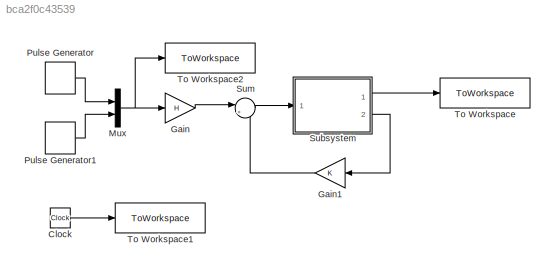
MODEL slx_bca2f0c43539
KIND model
CONFIG AbsTol = auto
CONFIG EnableMultiTasking = on
CONFIG FixedStep = 0.001
CONFIG MaxStep = auto
CONFIG MinStep = auto
CONFIG RelTol = 1e-3
CONFIG SampleTimeConstraint = Unconstrained
CONFIG Solver = ode4
CONFIG SolverName = ode4
CONFIG StartTime = 0.0
CONFIG StopTime = 10
BLOCK [Clock] Clock
BLOCK [Gain] Gain
  Gain = H
  Multiplication = Matrix(K*u)
BLOCK [Gain] Gain1
  Gain = K
  Multiplication = Matrix(K*u)
BLOCK [Mux] Mux
  DisplayOption = bar
  Inputs = 2
  Ports = [2, 1]
BLOCK [DiscretePulseGenerator] Pulse Generator
  NameLocation = top
  Period = 8
  PhaseDelay = 2
  Ports = [0, 1]
  PulseType = Time based
  PulseWidth = 50
BLOCK [DiscretePulseGenerator] Pulse Generator1
  Period = 8
  Ports = [0, 1]
  PulseType = Time based
  PulseWidth = 50
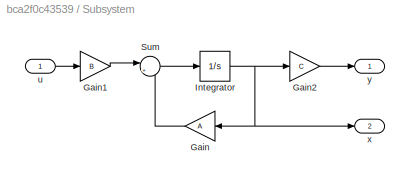
BLOCK [SubSystem] Subsystem
  Ports = [1, 2]
BLOCK [Gain] Subsystem/Gain
  Gain = A
  Multiplication = Matrix(K*u)
BLOCK [Gain] Subsystem/Gain1
  Gain = B
  Multiplication = Matrix(K*u)
BLOCK [Gain] Subsystem/Gain2
  Gain = C
  Multiplication = Matrix(K*u)
BLOCK [Integrator] Subsystem/Integrator
  Ports = [1, 1]
BLOCK [Sum] Subsystem/Sum
  InputSameDT = on
  Inputs = |++
  NameLocation = top
  OutDataTypeStr = Inherit: Same as first input
  Ports = [2, 1]
  SaturateOnIntegerOverflow = on
BLOCK [Inport] Subsystem/u
BLOCK [Outport] Subsystem/x
  Port = 2
  VectorParamsAs1DForOutWhenUnconnected = off
BLOCK [Outport] Subsystem/y
  VectorParamsAs1DForOutWhenUnconnected = off
BLOCK [Sum] Sum
  InputSameDT = on
  Inputs = |++
  NameLocation = top
  OutDataTypeStr = Inherit: Same as first input
  Ports = [2, 1]
  SaturateOnIntegerOverflow = on
BLOCK [ToWorkspace] To Workspace
  FixptAsFi = on
  MaxDataPoints = inf
  Ports = [1]
  SampleTime = -1
  VariableName = y
BLOCK [ToWorkspace] To Workspace1
  FixptAsFi = on
  MaxDataPoints = inf
  Ports = [1]
  SampleTime = -1
  VariableName = t
BLOCK [ToWorkspace] To Workspace2
  FixptAsFi = on
  MaxDataPoints = inf
  NameLocation = top
  Ports = [1]
  SampleTime = -1
  VariableName = yref
LINE Clock:1 -> To Workspace1:1
LINE Gain1:1 -> Sum:2
LINE Gain:1 -> Sum:1
NET Mux:1 -> Gain:1, To Workspace2:1
LINE Pulse Generator1:1 -> Mux:2
LINE Pulse Generator:1 -> Mux:1
LINE Subsystem/Gain1:1 -> Subsystem/Sum:1
LINE Subsystem/Gain2:1 -> Subsystem/y:1
LINE Subsystem/Gain:1 -> Subsystem/Sum:2
NET Subsystem/Integrator:1 -> Subsystem/Gain2:1, Subsystem/Gain:1, Subsystem/x:1
LINE Subsystem/Sum:1 -> Subsystem/Integrator:1
LINE Subsystem/u:1 -> Subsystem/Gain1:1
LINE Subsystem:1 -> To Workspace:1
LINE Subsystem:2 -> Gain1:1
LINE Sum:1 -> Subsystem:1
note: NET lines group one-source signal fan-out (src -> all destinations, sorted); 1:1 wires keep LINE
